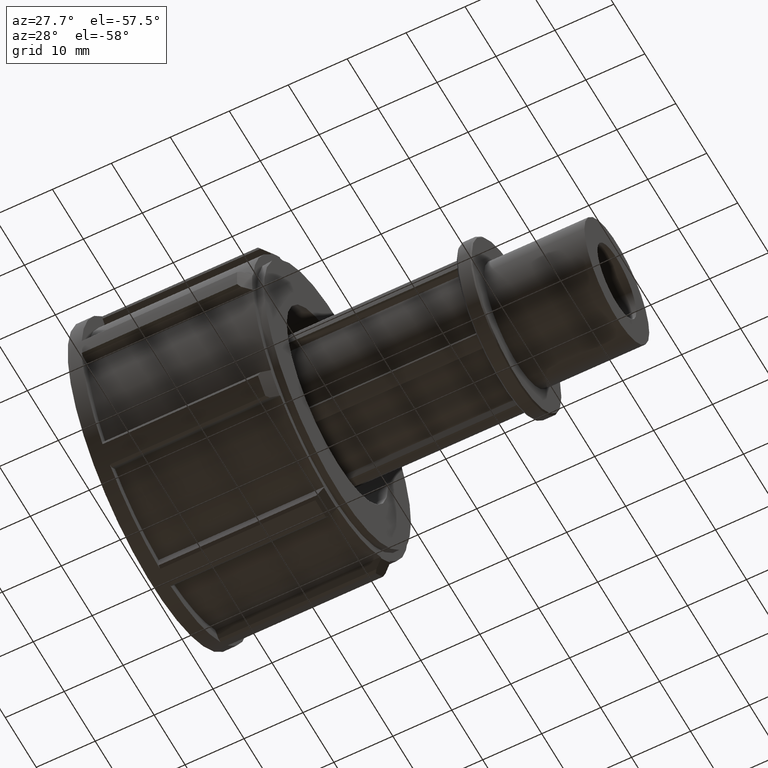
[diagram: clean part render]
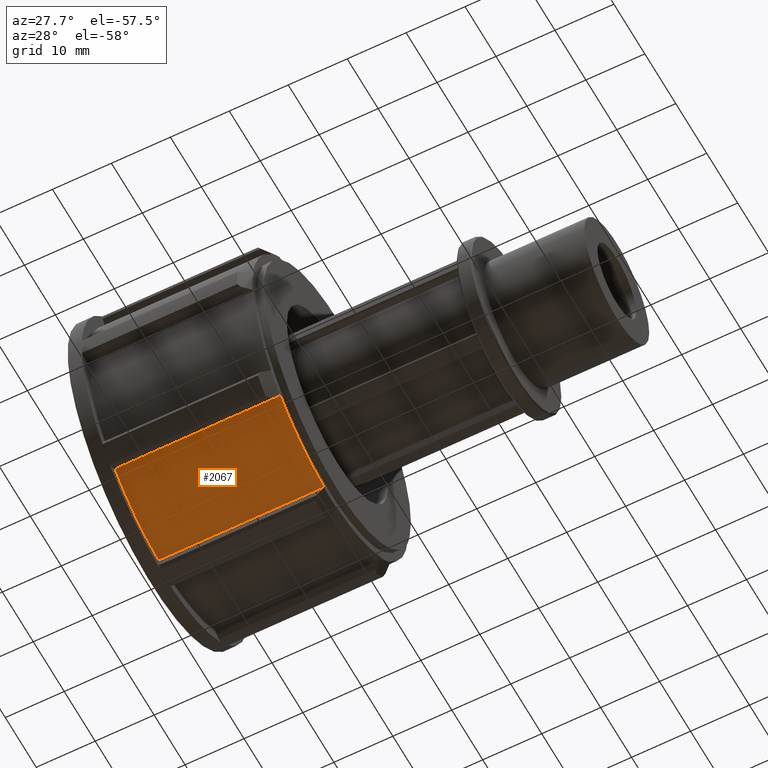
[diagram: same view with one face highlighted and labeled with its STEP entity id]
A machine part, auxiliary view. The second image highlights one B-rep face of the part: STEP entity #2067.
In plain terms, the highlighted cylindrical surface (partial cylindrical patch) has radius 25.11 mm, axis along (1, 0, 0).
Its self-contained STEP definition (entity closure, byte-faithful):
#138=CIRCLE('',#2235,25.11);
#145=CIRCLE('',#2249,25.11);
#183=CYLINDRICAL_SURFACE('',#2248,25.11);
#284=FACE_OUTER_BOUND('',#406,.T.);
#406=EDGE_LOOP('',(#1792,#1793,#1794,#1795));
#582=LINE('',#3338,#762);
#611=LINE('',#3432,#791);
#762=VECTOR('',#2661,28.045);
#791=VECTOR('',#2720,28.045);
#958=VERTEX_POINT('',#3335);
#959=VERTEX_POINT('',#3337);
#984=VERTEX_POINT('',#3429);
#985=VERTEX_POINT('',#3431);
#1219=EDGE_CURVE('',#959,#958,#582,.T.);
#1258=EDGE_CURVE('',#985,#984,#611,.T.);
#1271=EDGE_CURVE('',#958,#985,#138,.T.);
#1279=EDGE_CURVE('',#959,#984,#145,.T.);
#1792=ORIENTED_EDGE('',*,*,#1258,.T.);
#1793=ORIENTED_EDGE('',*,*,#1279,.F.);
#1794=ORIENTED_EDGE('',*,*,#1219,.T.);
#1795=ORIENTED_EDGE('',*,*,#1271,.T.);
#2067=ADVANCED_FACE('',(#284),#183,.T.);
#2235=AXIS2_PLACEMENT_3D('',#3457,#2748,#2749);
#2248=AXIS2_PLACEMENT_3D('',#3472,#2775,#2776);
#2249=AXIS2_PLACEMENT_3D('',#3473,#2777,#2778);
#2661=DIRECTION('',(-1.,0.,0.));
#2720=DIRECTION('',(1.,0.,0.));
#2748=DIRECTION('center_axis',(1.,0.,0.));
#2749=DIRECTION('ref_axis',(0.,0.,-1.));
#2775=DIRECTION('center_axis',(1.,0.,0.));
#2776=DIRECTION('ref_axis',(0.,1.,0.));
#2777=DIRECTION('center_axis',(1.,0.,0.));
#2778=DIRECTION('ref_axis',(0.,0.,-1.));
#3335=CARTESIAN_POINT('',(2.37,-16.2117732153326,-19.1752577352854));
#3337=CARTESIAN_POINT('',(30.415,-16.2117732153326,-19.1752577352854));
#3338=CARTESIAN_POINT('',(16.3925,-16.2117732153326,-19.1752577352854));
#3429=CARTESIAN_POINT('',(30.415,-2.0955,-25.0224095512403));
#3431=CARTESIAN_POINT('',(2.37,-2.0955,-25.0224095512403));
#3432=CARTESIAN_POINT('',(16.3925,-2.0955,-25.0224095512403));
#3457=CARTESIAN_POINT('Origin',(2.37,0.,0.));
#3472=CARTESIAN_POINT('Origin',(16.3925,0.,0.));
#3473=CARTESIAN_POINT('Origin',(30.415,0.,0.));